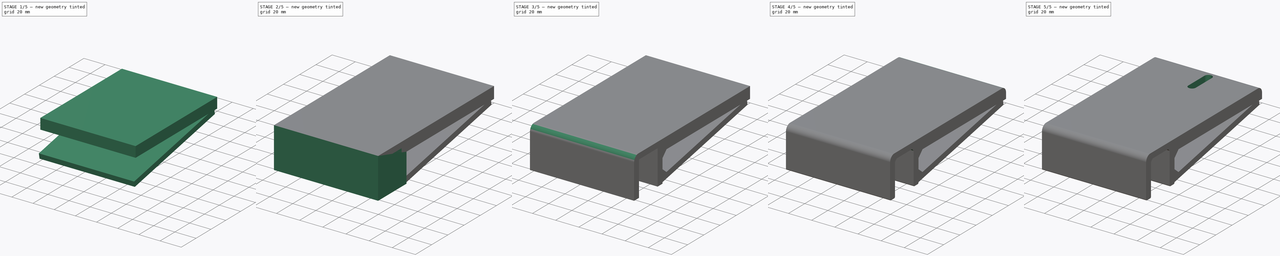
[diagram: build sequence overview — one tinted view per stage of 5, left to right]
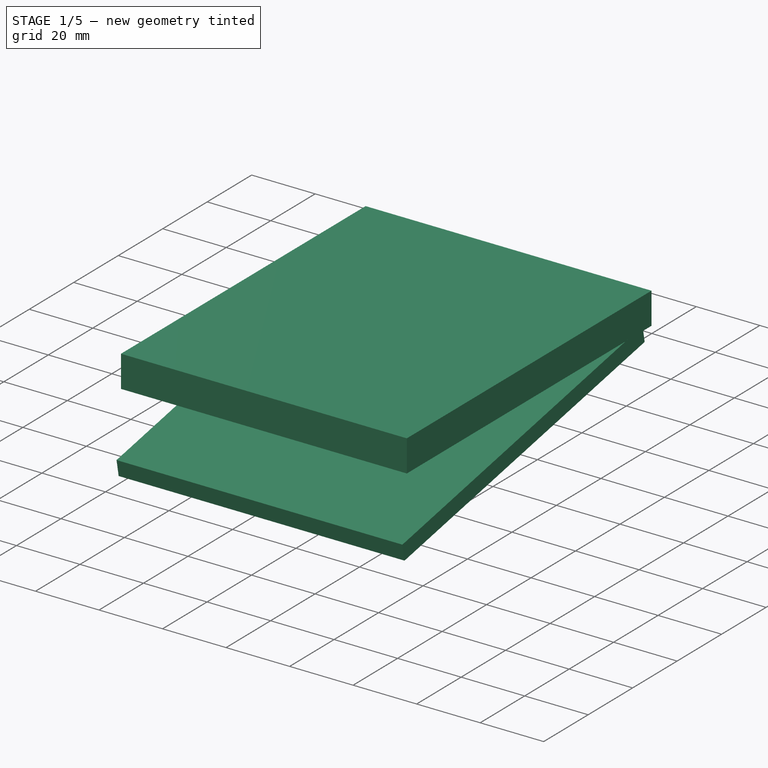
[diagram: stage 1 of 5 — iso view after this stage's code; geometry added in this stage tinted green]
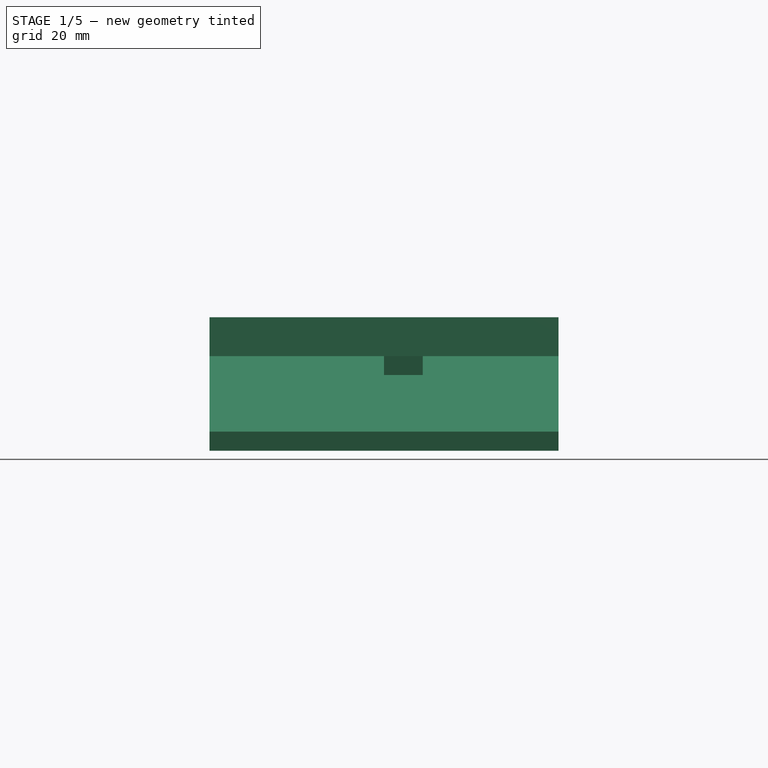
[diagram: stage 1 of 5 — front view after this stage's code; geometry added in this stage tinted green]
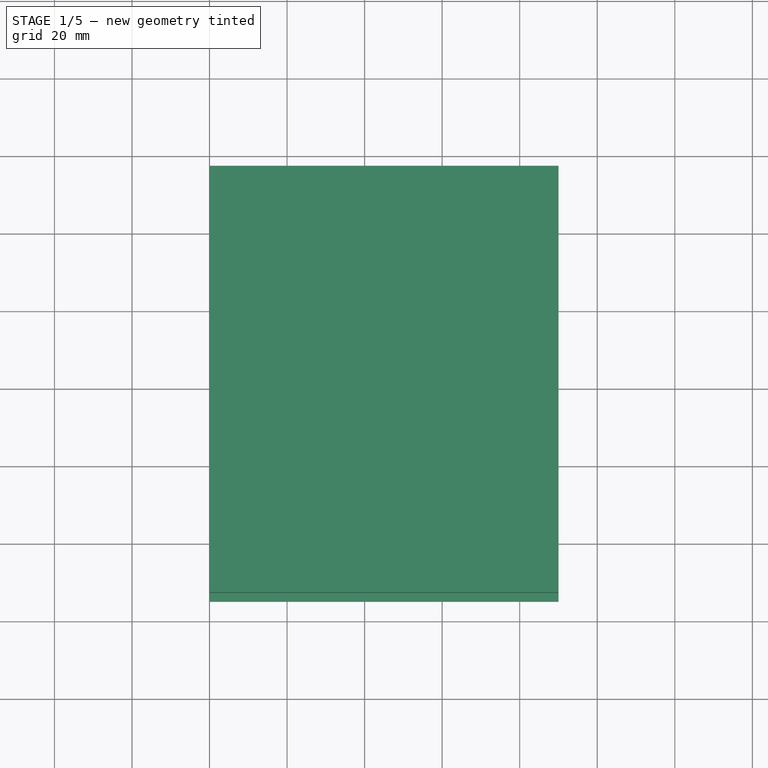
[diagram: stage 1 of 5 — top view after this stage's code; geometry added in this stage tinted green]
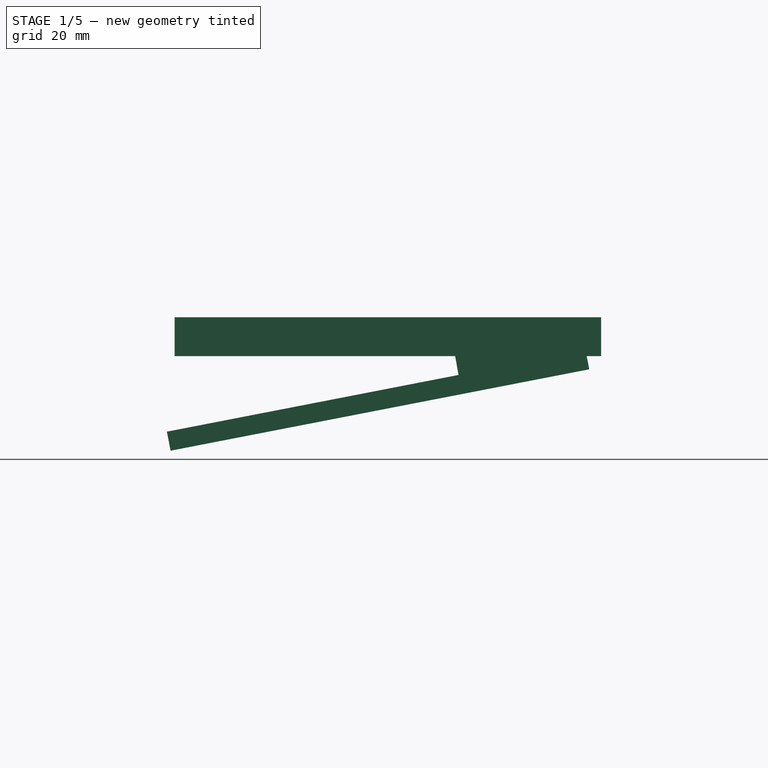
[diagram: stage 1 of 5 — right view after this stage's code; geometry added in this stage tinted green]
FCSTD DOCUMENT  (FreeCAD 0.17R12920 (Git))
Label: soporte_proyector
License: All rights reserved
LicenseURL: http://es.wikipedia.org/wiki/Todos_los_derechos_reservados
objects: Part::Box×5, Part::Fillet×3, Part::MultiFuse×2, Part::Cut×2, Part::Chamfer×2, Sketcher::SketchObject×1, Part::Extrusion×1
note: 16 computed .brp shape members not serialized (recipe doc carries the construction recipe); baked Part::Feature solids carry a one-line shape summary decoded from their .brp

FEATURE [Part::Box] Box002  label="soporte superior"
  AttacherType = Attacher::AttachEngine3D
  Height = 10
  Length = 90
  Placement = pos=(0,27,25) rot=(0,0,1;0rad)
  Width = 110
FEATURE [Part::Box] Box003  label="soporte superior001"
  AttacherType = Attacher::AttachEngine3D
  Height = 5
  Length = 90
  Placement = pos=(0,25.9645,0.597369) rot=(1,0,0;0.191986rad)
  Width = 110
FEATURE [Part::Box] Box004  label="Cubo"
  AttacherType = Attacher::AttachEngine3D
  Height = 11
  Length = 10
  Placement = pos=(45,100.727,17.2639) rot=(1,0,0;0.174533rad)
  Width = 33
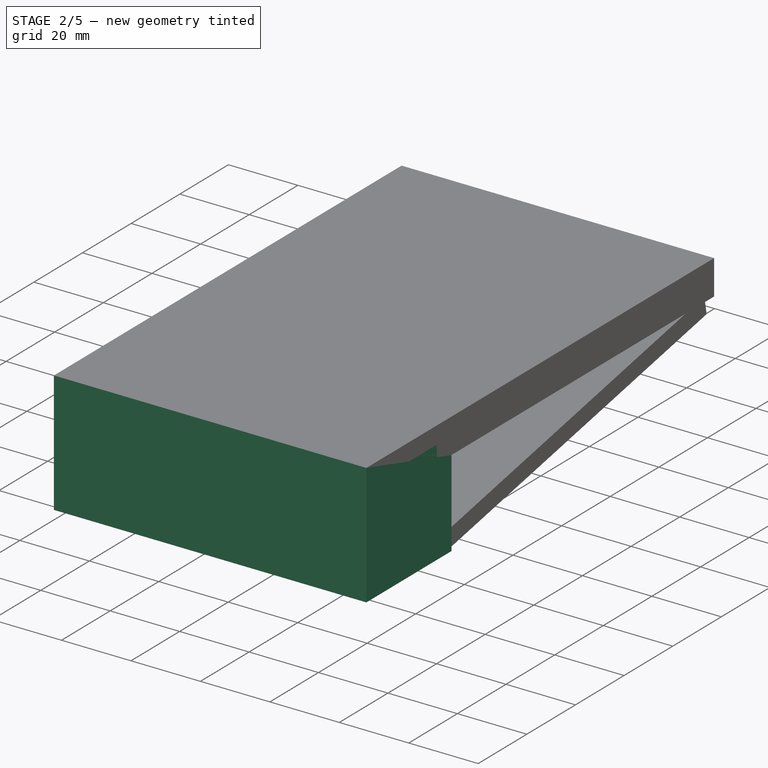
[diagram: stage 2 of 5 — iso view after this stage's code; geometry added in this stage tinted green]
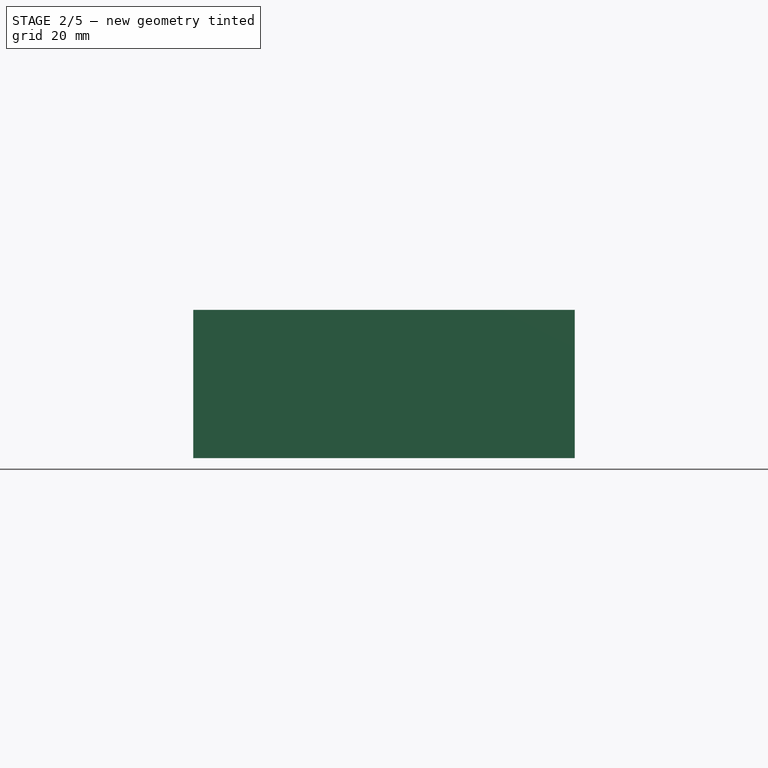
[diagram: stage 2 of 5 — front view after this stage's code; geometry added in this stage tinted green]
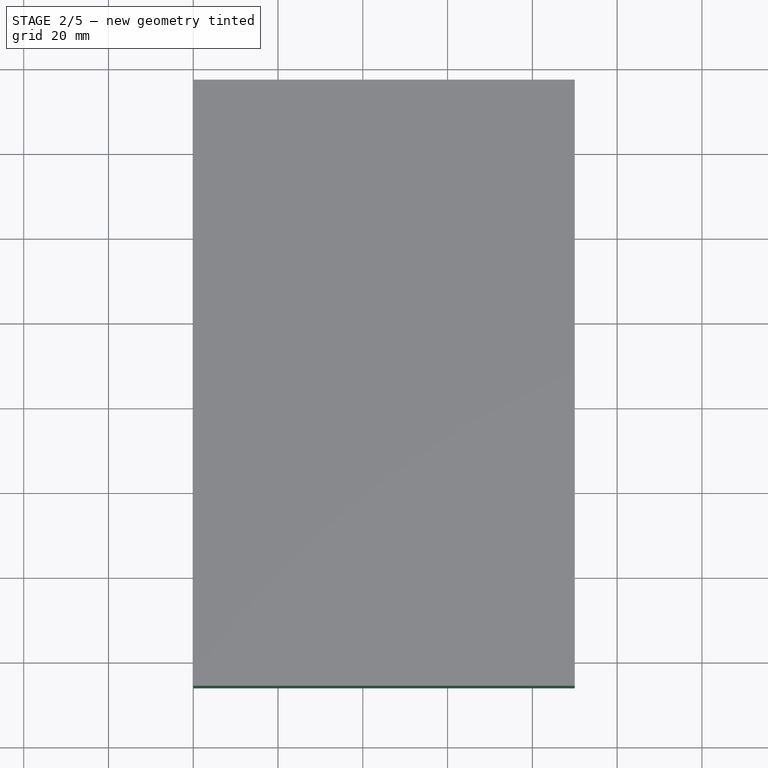
[diagram: stage 2 of 5 — top view after this stage's code; geometry added in this stage tinted green]
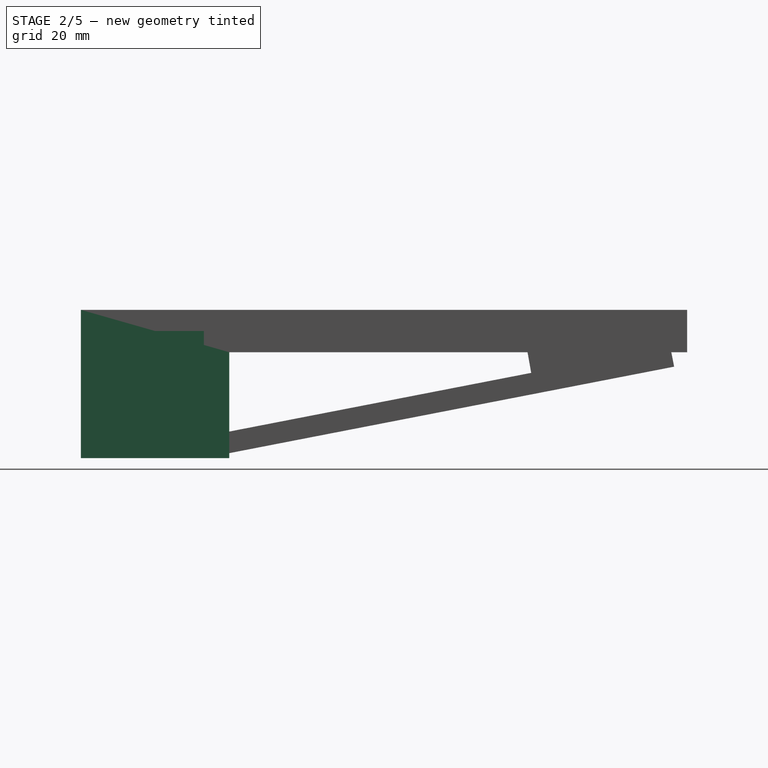
[diagram: stage 2 of 5 — right view after this stage's code; geometry added in this stage tinted green]
FEATURE [Part::Box] Box  label="cabecero"
  AttacherType = Attacher::AttachEngine3D
  Height = 30
  Length = 90
  Width = 23
FEATURE [Part::Box] Box001  label="cabecero001"
  AttacherType = Attacher::AttachEngine3D
  Height = 35
  Length = 90
  Placement = pos=(0,-6,0) rot=(0,0,1;0rad)
  Width = 35
FEATURE [Part::MultiFuse] Fusion
  Shapes = -> [Box001,Box002,Box003]
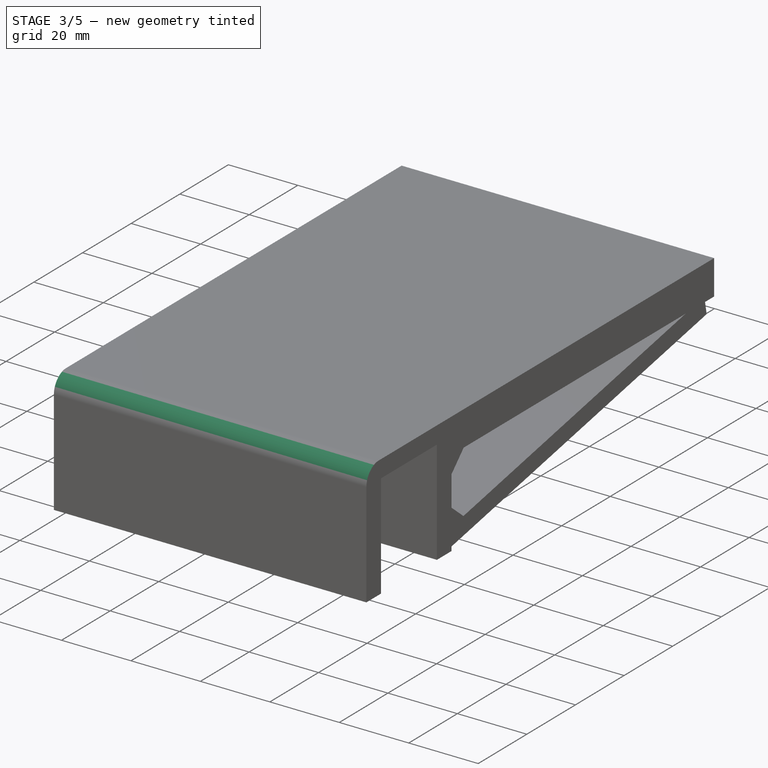
[diagram: stage 3 of 5 — iso view after this stage's code; geometry added in this stage tinted green]
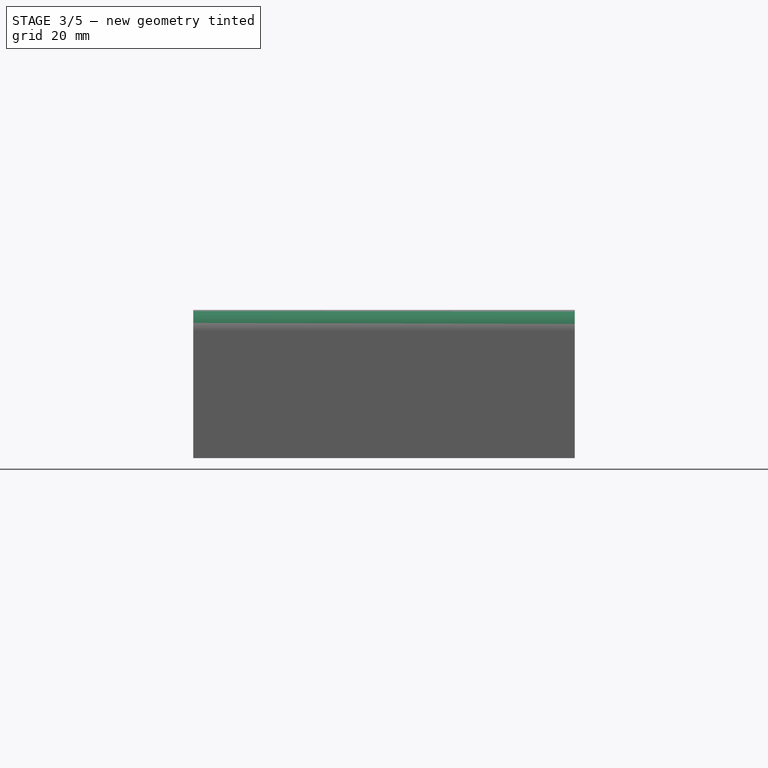
[diagram: stage 3 of 5 — front view after this stage's code; geometry added in this stage tinted green]
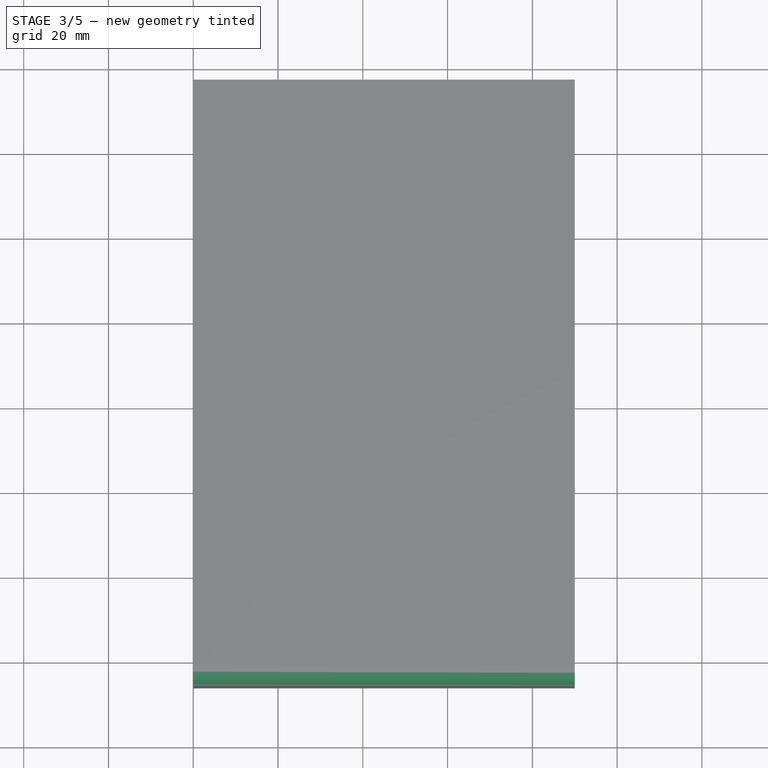
[diagram: stage 3 of 5 — top view after this stage's code; geometry added in this stage tinted green]
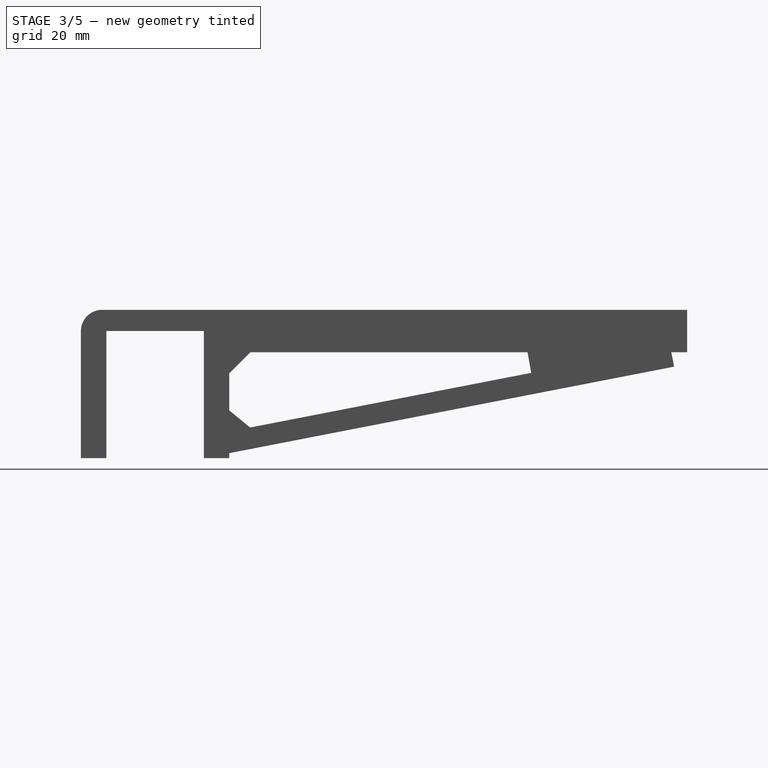
[diagram: stage 3 of 5 — right view after this stage's code; geometry added in this stage tinted green]
FEATURE [Part::Cut] Cut
  Base = -> Fusion
  Tool = -> Box
FEATURE [Part::Chamfer] Chamfer
  Base = -> Cut
  Edges = 2 edges r=5: [Edge43,Edge44]
FEATURE [Part::Fillet] Fillet
  Base = -> Chamfer
  Edges = 1 edges r=5: [Edge29]
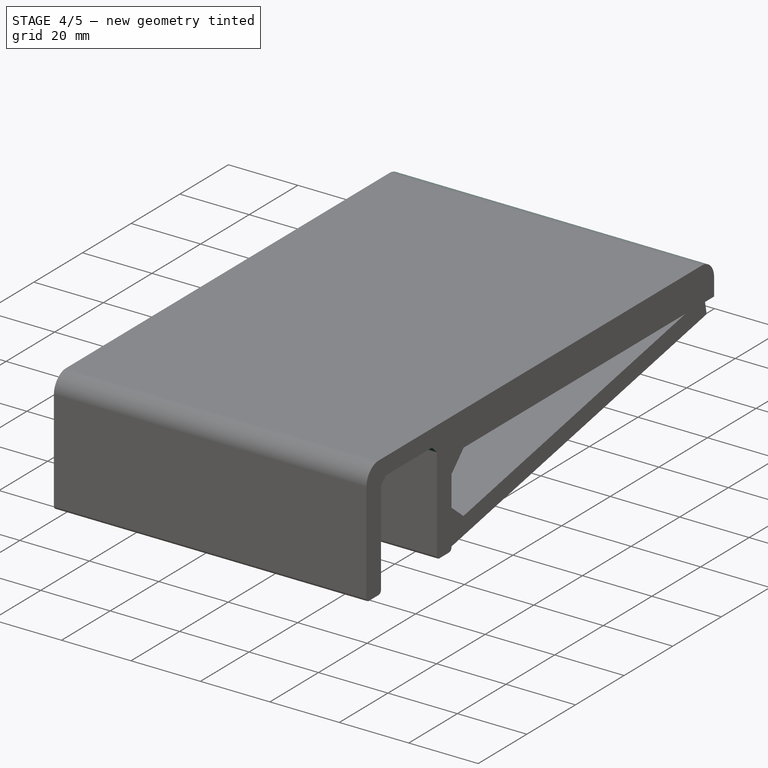
[diagram: stage 4 of 5 — iso view after this stage's code; geometry added in this stage tinted green]
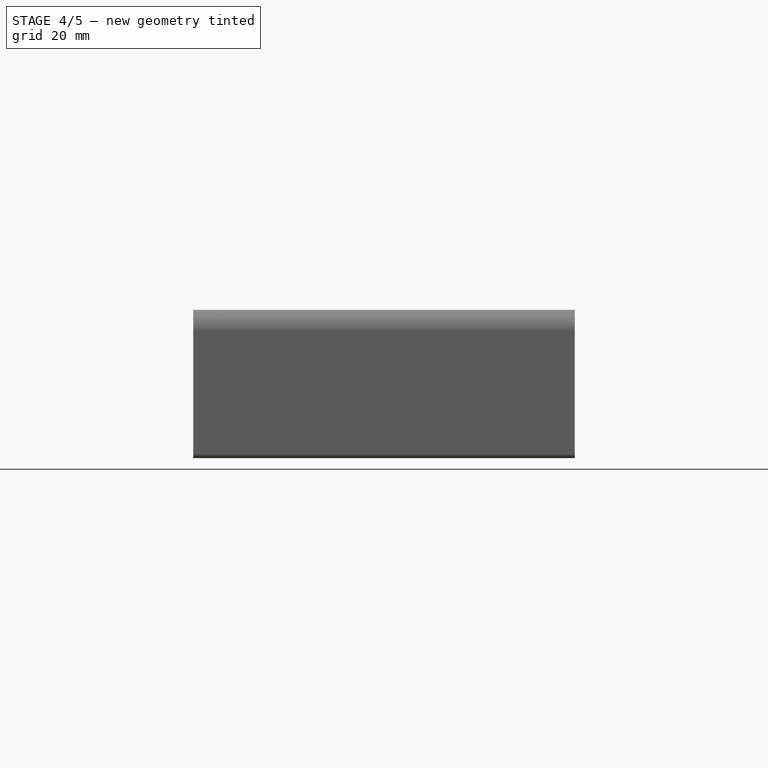
[diagram: stage 4 of 5 — front view after this stage's code; geometry added in this stage tinted green]
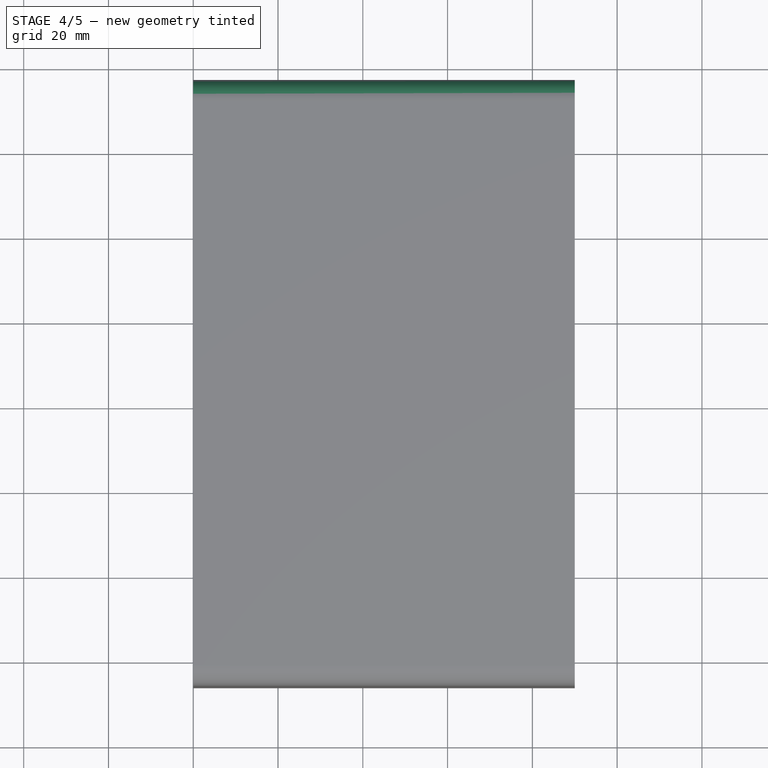
[diagram: stage 4 of 5 — top view after this stage's code; geometry added in this stage tinted green]
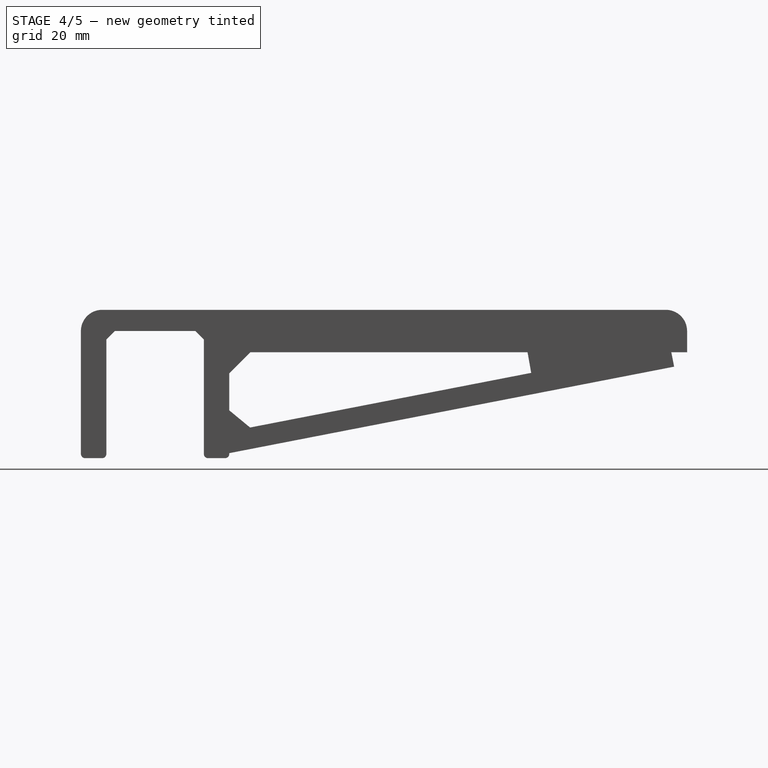
[diagram: stage 4 of 5 — right view after this stage's code; geometry added in this stage tinted green]
FEATURE [Part::Fillet] Fillet001
  Base = -> Fillet
  Edges = 1 edges r=5: [Edge21]
FEATURE [Part::Fillet] Fillet002
  Base = -> Fillet001
  Edges = 4 edges r=1: [Edge29,Edge34,Edge44,Edge45]
FEATURE [Part::Chamfer] Chamfer001
  Base = -> Fillet002
  Edges = 2 edges r=2: [Edge39,Edge44]
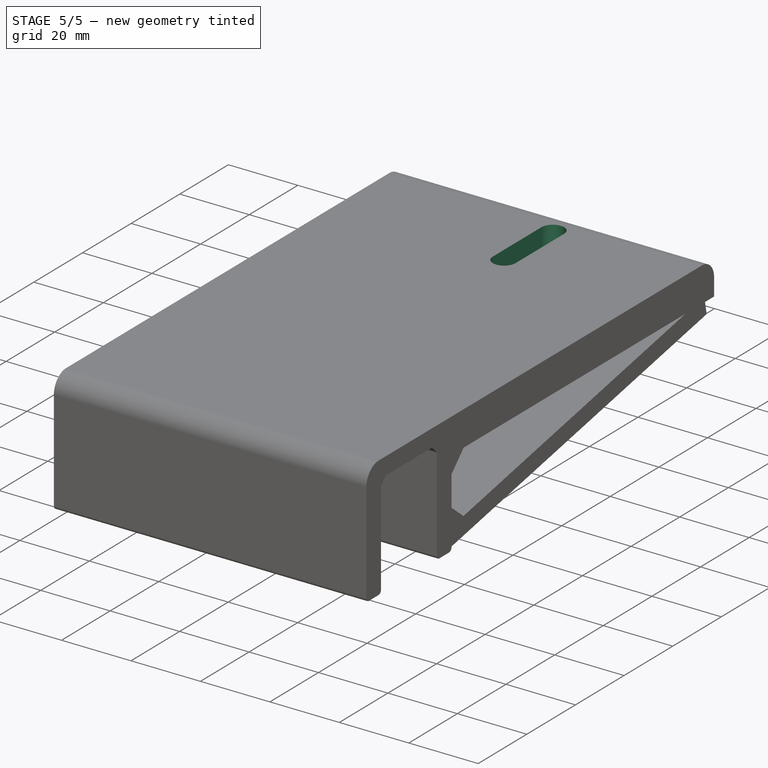
[diagram: stage 5 of 5 — iso view after this stage's code; geometry added in this stage tinted green]
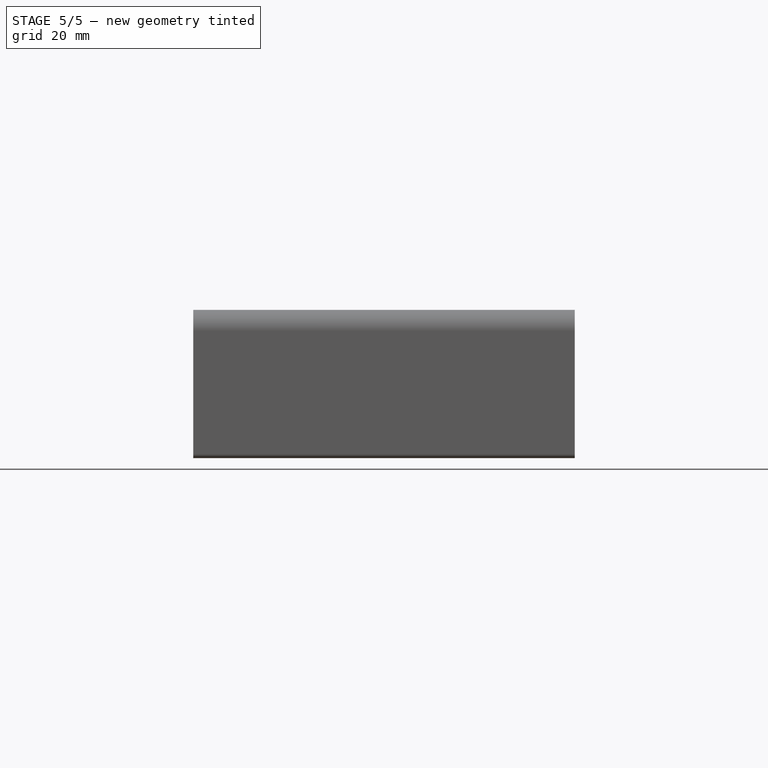
[diagram: stage 5 of 5 — front view after this stage's code; geometry added in this stage tinted green]
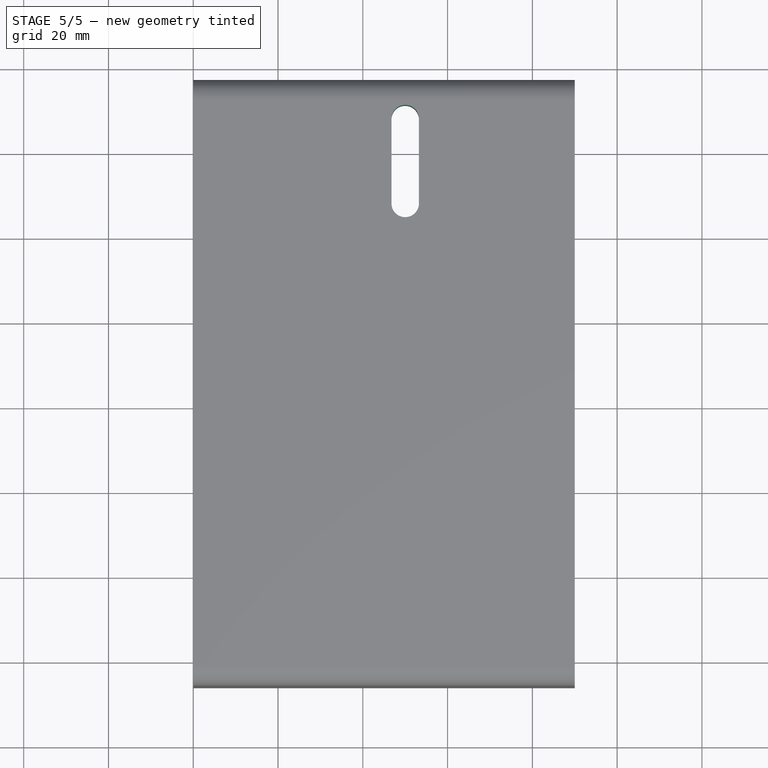
[diagram: stage 5 of 5 — top view after this stage's code; geometry added in this stage tinted green]
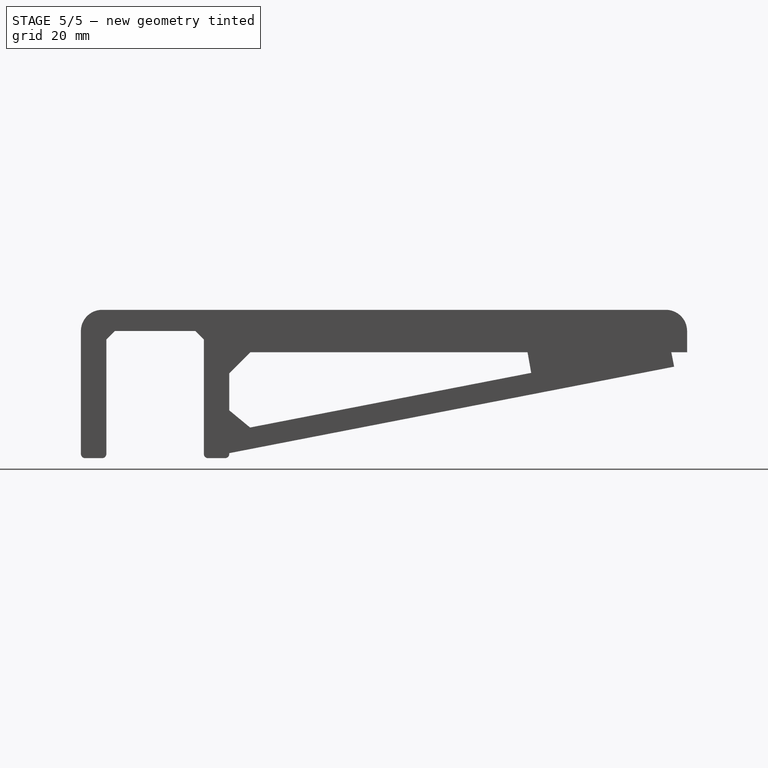
[diagram: stage 5 of 5 — right view after this stage's code; geometry added in this stage tinted green]
FEATURE [Sketcher::SketchObject] Sketch
  sketch-geometry (4):
    g0: ArcOfCircle CenterX=0 CenterY=4.8 CenterZ=0 NormalX=0 NormalY=0 NormalZ=1 AngleXU=0 Radius=3.23972 StartAngle=0 EndAngle=3.14159
    g1: ArcOfCircle CenterX=0 CenterY=-15.2 CenterZ=0 NormalX=0 NormalY=0 NormalZ=1 AngleXU=0 Radius=3.23972 StartAngle=3.14159 EndAngle=6.28319
    g2: LineSegment StartX=-3.23972 StartY=4.8 StartZ=0 EndX=-3.23972 EndY=-15.2 EndZ=0
    g3: LineSegment StartX=3.23972 StartY=4.8 StartZ=0 EndX=3.23972 EndY=-15.2 EndZ=0
  constraints (7):
    c: Tangent(g0,g3) = 1.5708
    c: Tangent(g0,g2) = -1.5708
    c: Tangent(g2,g1) = -1.5708
    c: Tangent(g3,g1) = 1.5708
    c: Vertical(g2)
    c: Equal(g0,g1)
    c: PointOnObject(g0,g-2)
FEATURE [Part::Extrusion] Extrude
  Base = -> Sketch
  Dir = (0,0,1)
  DirMode = 2
  FaceMakerClass = Part::FaceMakerBullseye
  LengthFwd = 40
  LengthRev = 0
  Placement = pos=(50,123,0) rot=(0,0,1;0rad)
  Solid = true
  Symmetric = false
FEATURE [Part::MultiFuse] Fusion001
  Shapes = -> [Chamfer001,Box004]
FEATURE [Part::Cut] Cut001  label="soporte proyector"
  Base = -> Fusion001
  Tool = -> Extrude
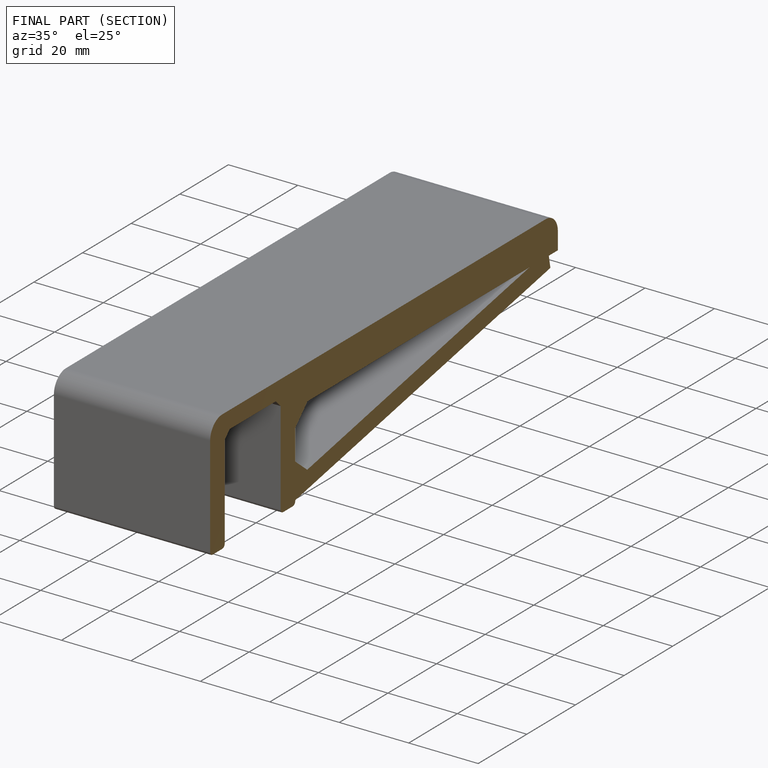
[diagram: finished part — half-section view (interior)]
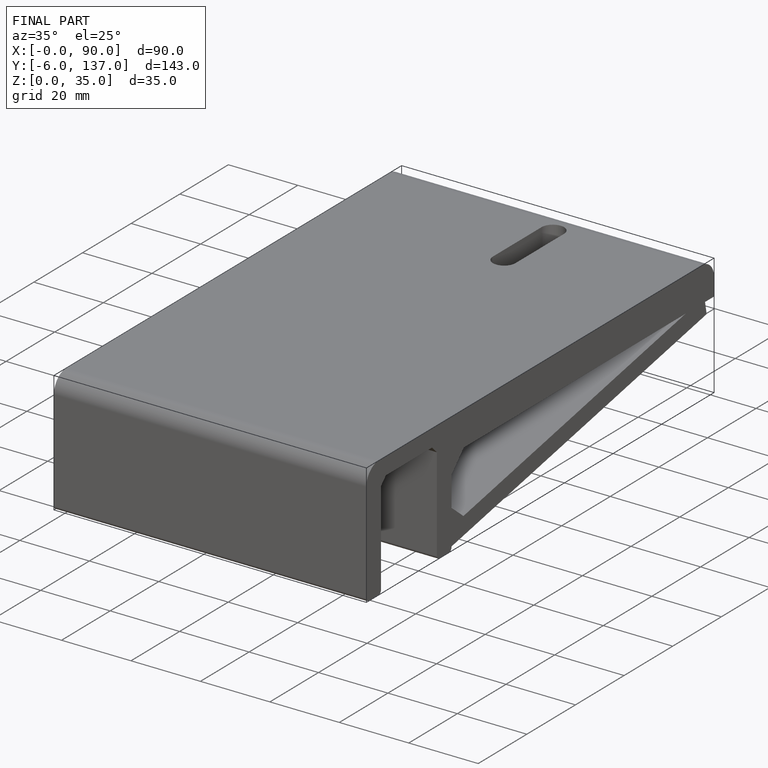
[diagram: finished part — iso view with bounding-box wireframe]
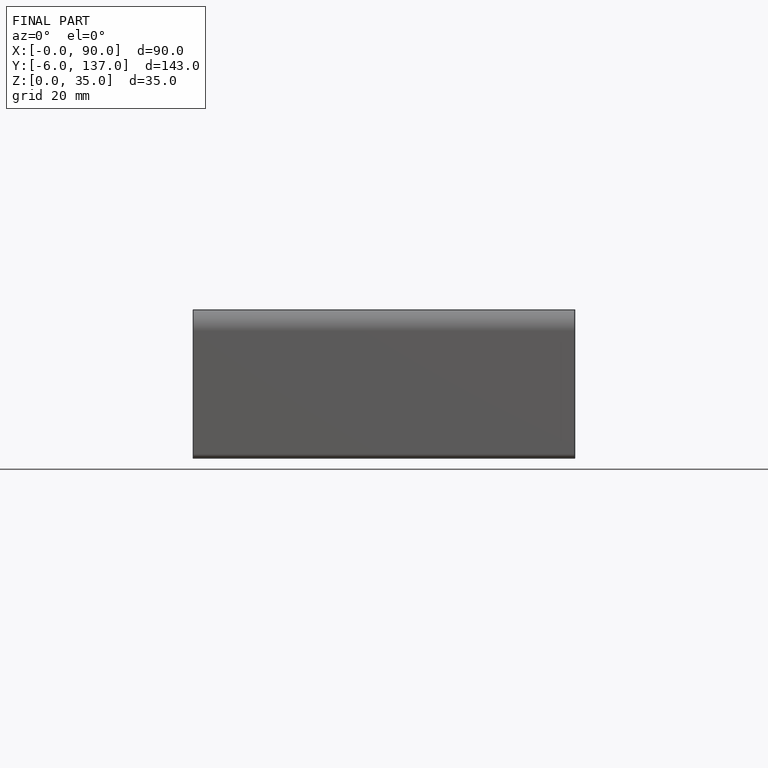
[diagram: finished part — front view with bounding-box wireframe]
